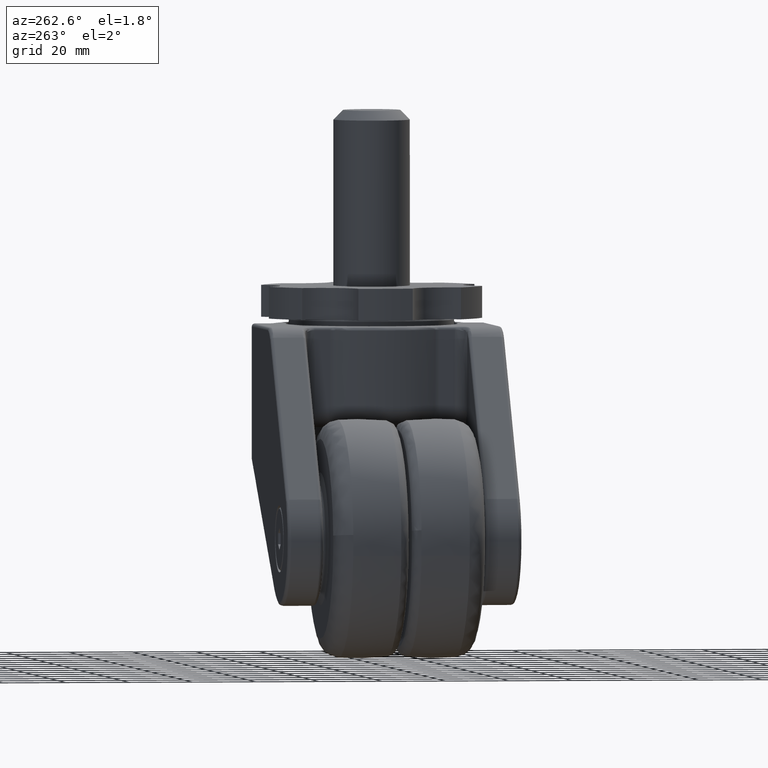
[diagram: clean part render]
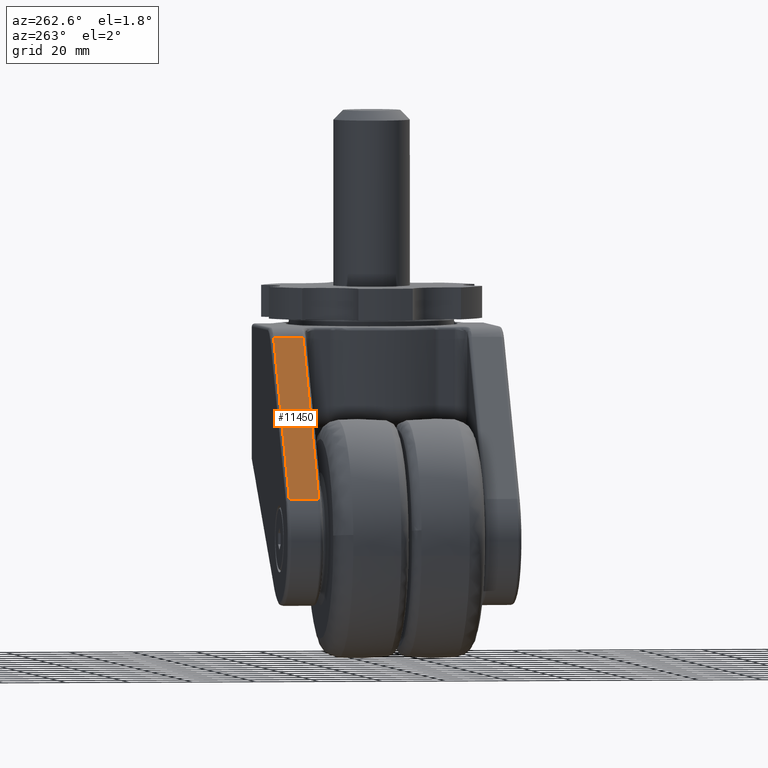
[diagram: same view with one face highlighted and labeled with its STEP entity id]
A machine part, auxiliary view. The second image highlights one B-rep face of the part: STEP entity #11450.
In plain terms, the highlighted face is a freeform B-spline surface patch.
Its self-contained STEP definition (entity closure, byte-faithful):
#10054=CARTESIAN_POINT('',(-38.401894000000048,26.649999999999999,-12.114036000000160));
#10055=VERTEX_POINT('',#10054);
#10115=CARTESIAN_POINT('',(-76.630041028283088,26.649999999999999,-61.676516253465898));
#10116=VERTEX_POINT('',#10115);
#10136=CARTESIAN_POINT('',(-38.401894000000048,26.649999999999999,-12.114036000000160));
#10137=CARTESIAN_POINT('',(-76.630041028283088,26.649999999999999,-61.676516253465898));
#10138=QUASI_UNIFORM_CURVE('',1,(#10136,#10137),.UNSPECIFIED.,.F.,.U.);
#10139=EDGE_CURVE('',#10055,#10116,#10138,.T.);
#10927=CARTESIAN_POINT('',(-38.401894000000048,35.950000000000003,-12.114036000000160));
#10928=VERTEX_POINT('',#10927);
#11046=CARTESIAN_POINT('',(-76.630041028283088,35.950000000000003,-61.676516253465898));
#11047=VERTEX_POINT('',#11046);
#11065=CARTESIAN_POINT('',(-76.630041028283088,35.950000000000003,-61.676516253465898));
#11066=CARTESIAN_POINT('',(-38.401894000000048,35.950000000000003,-12.114036000000160));
#11067=QUASI_UNIFORM_CURVE('',1,(#11065,#11066),.UNSPECIFIED.,.F.,.U.);
#11068=EDGE_CURVE('',#11047,#10928,#11067,.T.);
#11420=CARTESIAN_POINT('',(-76.630041028283088,26.649999999999999,-61.676516253465898));
#11421=CARTESIAN_POINT('',(-76.630041028283088,35.950000000000003,-61.676516253465898));
#11422=QUASI_UNIFORM_CURVE('',1,(#11420,#11421),.UNSPECIFIED.,.F.,.U.);
#11423=EDGE_CURVE('',#10116,#11047,#11422,.T.);
#11435=CARTESIAN_POINT('',(-78.539538333686252,26.185464548290341,-64.152163907093225));
#11436=CARTESIAN_POINT('',(-36.492397036383160,26.185464548290341,-9.638388789495934));
#11437=CARTESIAN_POINT('',(-78.539538333686252,36.414535950600538,-64.152163907093225));
#11438=CARTESIAN_POINT('',(-36.492397036383160,36.414535950600538,-9.638388789495934));
#11439=B_SPLINE_SURFACE_WITH_KNOTS('',1,1,((#11435,#11437),(#11436,#11438)),.UNSPECIFIED.,.F.,.F.,.U.,(2,2),(2,2),(0.0,68.845579152530490),(0.0,10.229071402310201),.UNSPECIFIED.);
#11440=CARTESIAN_POINT('',(-38.401894000000048,26.649999999999999,-12.114036000000160));
#11441=CARTESIAN_POINT('',(-38.401894000000048,35.950000000000003,-12.114036000000160));
#11442=QUASI_UNIFORM_CURVE('',1,(#11440,#11441),.UNSPECIFIED.,.F.,.U.);
#11443=EDGE_CURVE('',#10055,#10928,#11442,.T.);
#11444=ORIENTED_EDGE('',*,*,#11443,.T.);
#11445=ORIENTED_EDGE('',*,*,#11068,.F.);
#11446=ORIENTED_EDGE('',*,*,#11423,.F.);
#11447=ORIENTED_EDGE('',*,*,#10139,.F.);
#11448=EDGE_LOOP('',(#11444,#11445,#11446,#11447));
#11449=FACE_OUTER_BOUND('',#11448,.T.);
#11450=ADVANCED_FACE('',(#11449),#11439,.T.);